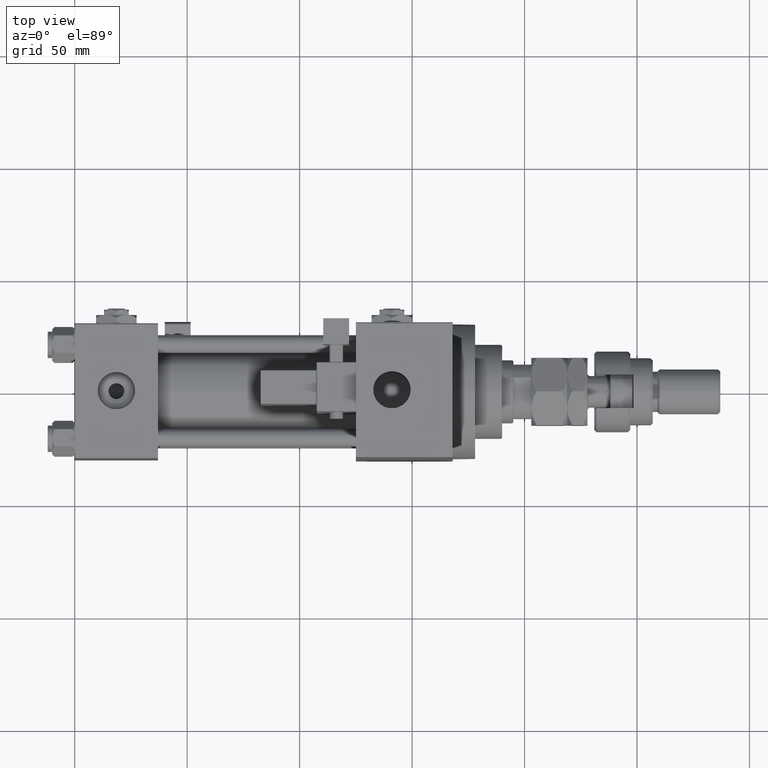
[diagram: clean part render]
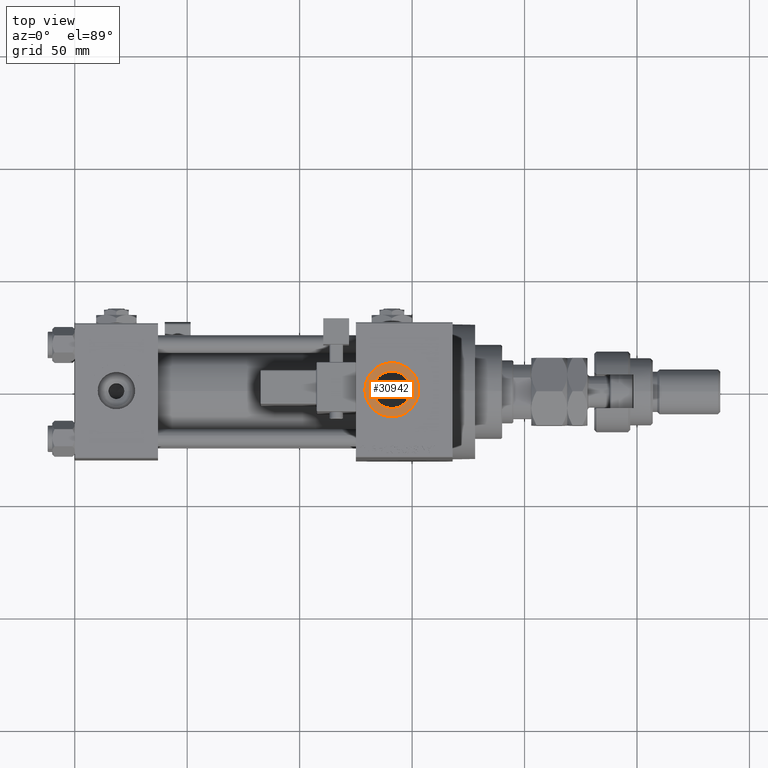
[diagram: same view with one face highlighted and labeled with its STEP entity id]
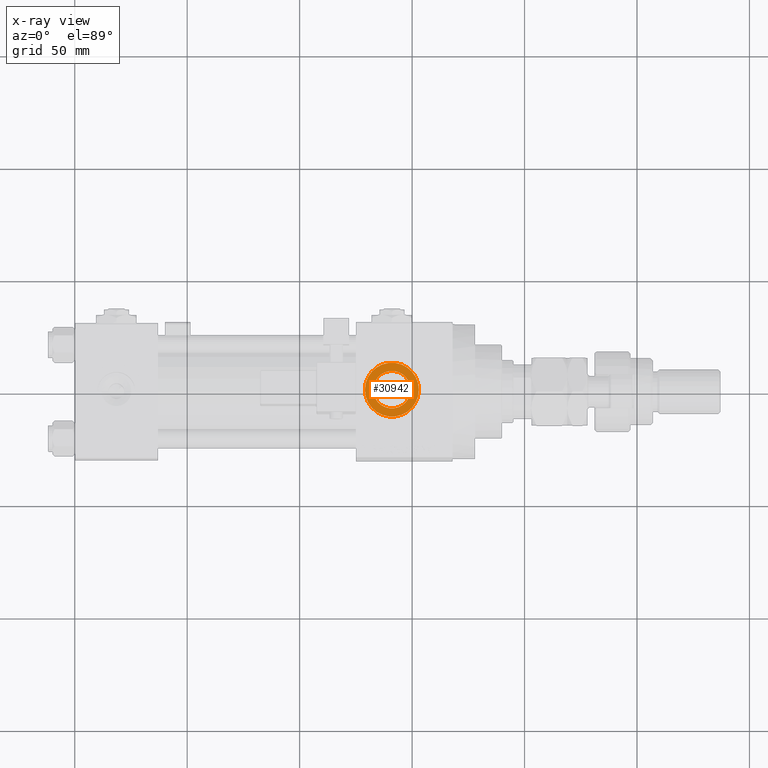
[diagram: x-ray of the same camera — body ghosted, the highlighted face saturated]
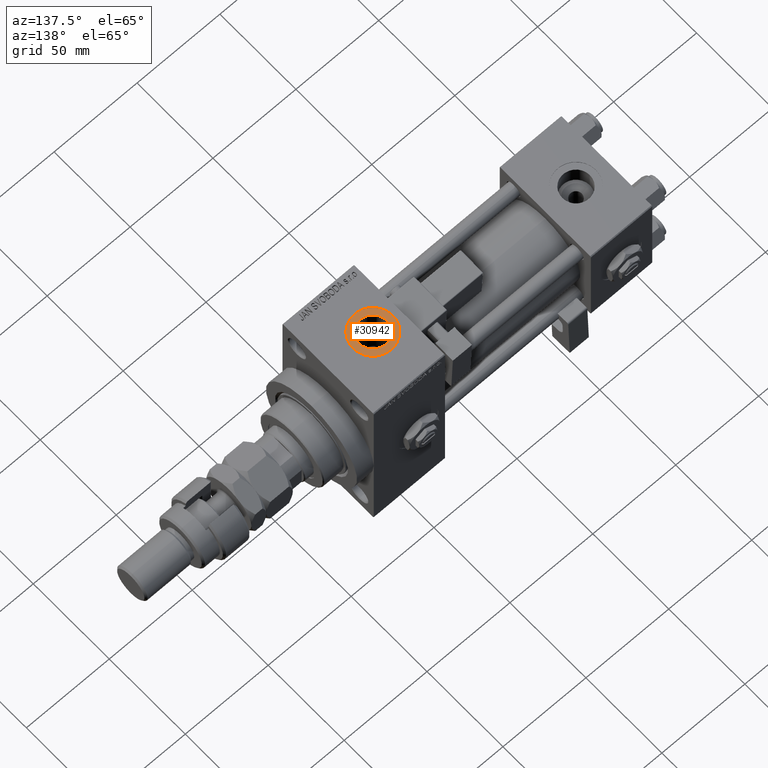
[diagram: same view with one face highlighted and labeled with its STEP entity id]
A machine part, top view. The second image highlights one B-rep face of the part: STEP entity #30942.
The next image is the same camera in x-ray: the body ghosted, the highlighted face saturated — about 0% of this face is hidden behind the body in this view.
A second angle (auxiliary view) of the same face is appended — the face is thin or edge-on in the first view.
In plain terms, the highlighted planar face has unit normal (0, 0, 1).
Its self-contained STEP definition (entity closure, byte-faithful):
#3317 = ORIENTED_EDGE ( 'NONE', *, *, #44085, .T. ) ;
#4302 = DIRECTION ( 'NONE',  ( 1.000000000000000000, 0.000000000000000000, 0.000000000000000000 ) ) ;
#4838 = CIRCLE ( 'NONE', #5702, 12.00000000000001066 ) ;
#5702 = AXIS2_PLACEMENT_3D ( 'NONE', #23929, #48808, #53767 ) ;
#5712 = EDGE_CURVE ( 'NONE', #36821, #11580, #34796, .T. ) ;
#6420 = EDGE_LOOP ( 'NONE', ( #3317, #30385 ) ) ;
#6554 = DIRECTION ( 'NONE',  ( 0.000000000000000000, 0.000000000000000000, 1.000000000000000000 ) ) ;
#6593 = CARTESIAN_POINT ( 'NONE',  ( 153.0000000000000284, 6.302828629382399373E-15, 54.29999999999999716 ) ) ;
#8604 = ORIENTED_EDGE ( 'NONE', *, *, #45426, .T. ) ;
#9694 = AXIS2_PLACEMENT_3D ( 'NONE', #14303, #6554, #44419 ) ;
#11417 = DIRECTION ( 'NONE',  ( 0.000000000000000000, 0.000000000000000000, 1.000000000000000000 ) ) ;
#11580 = VERTEX_POINT ( 'NONE', #40953 ) ;
#12746 = CARTESIAN_POINT ( 'NONE',  ( 132.6700000000000159, 6.302828629382400162E-15, 54.29999999999999716 ) ) ;
#13618 = CIRCLE ( 'NONE', #40106, 8.330000000000003624 ) ;
#14303 = CARTESIAN_POINT ( 'NONE',  ( 141.0000000000000000, 6.302828629382399373E-15, 54.29999999999999716 ) ) ;
#15300 = AXIS2_PLACEMENT_3D ( 'NONE', #50163, #20051, #4302 ) ;
#15539 = CARTESIAN_POINT ( 'NONE',  ( 141.0000000000000000, 6.302828629382399373E-15, 54.29999999999999716 ) ) ;
#16070 = VERTEX_POINT ( 'NONE', #12746 ) ;
#17929 = DIRECTION ( 'NONE',  ( 1.000000000000000000, 0.000000000000000000, 0.000000000000000000 ) ) ;
#20051 = DIRECTION ( 'NONE',  ( -0.000000000000000000, -0.000000000000000000, -1.000000000000000000 ) ) ;
#21358 = ORIENTED_EDGE ( 'NONE', *, *, #5712, .T. ) ;
#23929 = CARTESIAN_POINT ( 'NONE',  ( 141.0000000000000000, 6.302828629382399373E-15, 54.29999999999999716 ) ) ;
#25151 = CARTESIAN_POINT ( 'NONE',  ( 141.0000000000000000, 6.302828629382400162E-15, 54.29999999999999716 ) ) ;
#30385 = ORIENTED_EDGE ( 'NONE', *, *, #42857, .T. ) ;
#30942 = ADVANCED_FACE ( 'NONE', ( #35348, #52160 ), #44156, .T. ) ;
#33012 = AXIS2_PLACEMENT_3D ( 'NONE', #15539, #11417, #43312 ) ;
#34294 = DIRECTION ( 'NONE',  ( -0.000000000000000000, -0.000000000000000000, -1.000000000000000000 ) ) ;
#34796 = CIRCLE ( 'NONE', #33012, 12.00000000000001066 ) ;
#35348 = FACE_BOUND ( 'NONE', #6420, .T. ) ;
#36821 = VERTEX_POINT ( 'NONE', #6593 ) ;
#40106 = AXIS2_PLACEMENT_3D ( 'NONE', #25151, #34294, #17929 ) ;
#40953 = CARTESIAN_POINT ( 'NONE',  ( 129.0000000000000000, 7.772404788359223517E-15, 54.29999999999999716 ) ) ;
#41796 = CIRCLE ( 'NONE', #15300, 8.330000000000003624 ) ;
#42857 = EDGE_CURVE ( 'NONE', #47666, #16070, #41796, .T. ) ;
#43312 = DIRECTION ( 'NONE',  ( 1.000000000000000000, 0.000000000000000000, 0.000000000000000000 ) ) ;
#43347 = EDGE_LOOP ( 'NONE', ( #21358, #8604 ) ) ;
#44085 = EDGE_CURVE ( 'NONE', #16070, #47666, #13618, .T. ) ;
#44156 = PLANE ( 'NONE',  #9694 ) ;
#44419 = DIRECTION ( 'NONE',  ( 1.000000000000000000, 0.000000000000000000, -0.000000000000000000 ) ) ;
#45426 = EDGE_CURVE ( 'NONE', #11580, #36821, #4838, .T. ) ;
#47666 = VERTEX_POINT ( 'NONE', #52787 ) ;
#48808 = DIRECTION ( 'NONE',  ( 0.000000000000000000, 0.000000000000000000, 1.000000000000000000 ) ) ;
#50163 = CARTESIAN_POINT ( 'NONE',  ( 141.0000000000000000, 6.302828629382400162E-15, 54.29999999999999716 ) ) ;
#52160 = FACE_OUTER_BOUND ( 'NONE', #43347, .T. ) ;
#52787 = CARTESIAN_POINT ( 'NONE',  ( 149.3300000000000125, 7.322959413072145713E-15, 54.29999999999999716 ) ) ;
#53767 = DIRECTION ( 'NONE',  ( 1.000000000000000000, 0.000000000000000000, 0.000000000000000000 ) ) ;